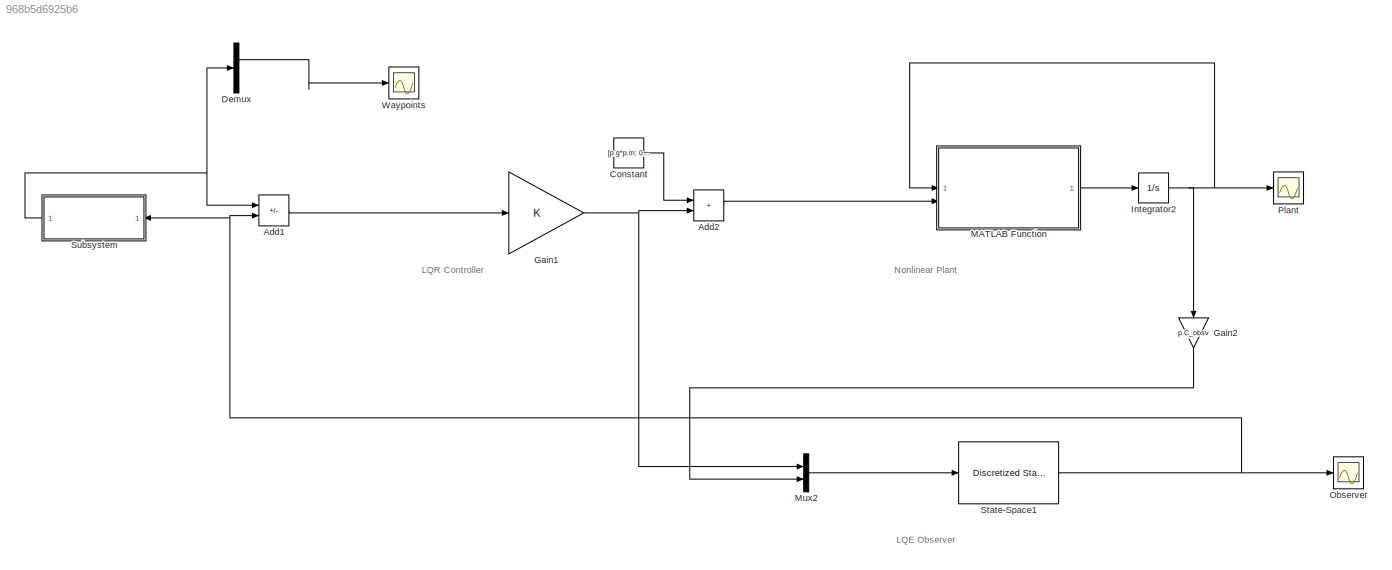
MODEL slx_968b5d6925b6
KIND model
CONFIG AbsTol = auto
CONFIG EnableMultiTasking = off
CONFIG FixedStep = auto
CONFIG MaxStep = auto
CONFIG MinStep = auto
CONFIG RelTol = 1e-3
CONFIG SampleTimeConstraint = Unconstrained
CONFIG SolverName = VariableStepAuto
CONFIG StartTime = 0.0
CONFIG StopTime = 120
BLOCK [Sum] Add1
  IconShape = rectangular
  Inputs = +-
BLOCK [Sum] Add2
  IconShape = rectangular
BLOCK [Constant] Constant
  Value = [p.g*p.m; 0 ; 0; 0]
BLOCK [Demux] Demux
BLOCK [Gain] Gain1
  Gain = K
  Multiplication = Matrix(K*u)
BLOCK [Gain] Gain2
  Gain = p.C_obsv
  Multiplication = Matrix(K*u)
  NameLocation = left
BLOCK [Integrator] Integrator2
  InitialCondition = [0;0;0;0;0;0;0;0;0;0;0;0]
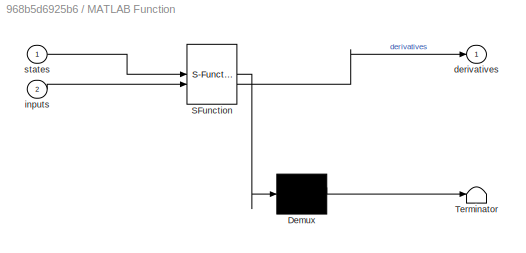
BLOCK [SubSystem] MATLAB Function
  ErrorFcn = Stateflow.Translate.translate
  PermitHierarchicalResolution = ExplicitOnly
  SFBlockType = MATLAB Function
  TreatAsAtomicUnit = on
BLOCK [Demux] MATLAB Function/ Demux 
  Outputs = 1
BLOCK [S-Function] MATLAB Function/ SFunction 
  EnableBusSupport = off
  FunctionName = sf_sfun
  Parameters = p
  PortCounts = [2 2]
  SFcnIsStateOwnerBlock = off
  SFunctionDeploymentMode = off
  Tag = Stateflow S-Function 3
BLOCK [Terminator] MATLAB Function/ Terminator 
BLOCK [Outport] MATLAB Function/derivatives
BLOCK [Inport] MATLAB Function/inputs
  Port = 2
BLOCK [Inport] MATLAB Function/states
BLOCK [Mux] Mux2
  DisplayOption = bar
  Inputs = 2
BLOCK [Scope] Observer
  ActiveDisplayYMaximum = 9.5178431515242661
  ActiveDisplayYMinimum = -10.02123478011695
  DataLoggingVariableName = ScopeData3
  Floating = off
  GraphicalSettings = {"AxesScalingProperties":{"AlignXAxis":"Center","AlignYAxis":"Center","AutoScaleXAxisLimits":false,"AxesScaling":"Manual","AxesScalingNumUpdates":10,"ExpandOnly":true,"ScaleAxesLimitsAtStop":false,"XAxisDataRange":100,"YAxisDataRange":80},"DisplayProperties":{"ColorOrder":["auto","auto","auto","auto","auto","auto","auto","auto","auto","auto","auto","auto","auto","auto","auto","auto","auto","auto",...<+3616ch>
  MultipleDisplayCache = [{"MaxYLimMag":12.619200773589176,"MaxYLimReal":9.5178431515242661,"MinYLimMag":0,"MinYLimReal":-10.02123478011695,"PlotAsMagnitudePhase":false,"ShowGrid":true,"ShowLegend":true,"Title":"%<SignalLabel>","YLabel":""}]
  NumInputPorts = 1
  ScopeFrameLocation = window
  ShowLegend = on
  WasSavedAsWebScope = on
  WindowPosition = [1.000000,49.000000,1536.000000,793.000000,]
BLOCK [Scope] Plant
  ActiveDisplayYMaximum = 13.768800180707615
  ActiveDisplayYMinimum = -13.272021598503848
  DataLoggingVariableName = ScopeData2
  Floating = off
  GraphicalSettings = {"Style":{"BackgroundColor":[0.12941176470588237,0.12941176470588237,0.12941176470588237],"AxesColor":[0.07058823529411765,0.07058823529411765,0.07058823529411765],"LabelsColor":[0.8509803921568627,0.8509803921568627,0.8509803921568627],"PreserveColors":false,"Visible":[true,true,true,true,true,true,true,true,true,true,true,true],"LineStyle":["-","-","-","-","-","-","-","-","-","-","-","-"],"LineW...<+3553ch>
  MultipleDisplayCache = [{"MaxYLimMag":12.224167164982651,"MaxYLimReal":13.768800180707615,"MinYLimMag":0,"MinYLimReal":-13.272021598503848,"PlotAsMagnitudePhase":false,"ShowGrid":true,"ShowLegend":true,"Title":"%<SignalLabel>","YLabel":""}]
  NumInputPorts = 1
  ScopeFrameLocation = window
  ShowLegend = on
  Visible = on
  WasSavedAsWebScope = on
  WindowPosition = [0.000000,36.000000,1536.000000,793.000000,]
BLOCK [Reference] State-Space1  REF=discretizing/Discretized  (lib defined in mdl_5048aa1cd587)
State-Space
  SourceBlock = discretizing/Discretized\nState-Space
  SourceType = DiscretizedStateSpace
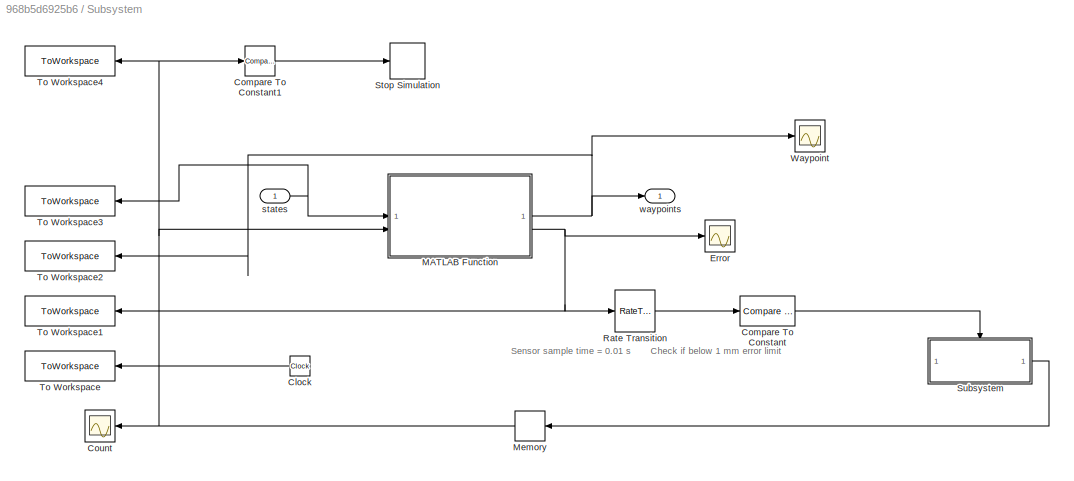
BLOCK [SubSystem] Subsystem
  NameLocation = top
BLOCK [Clock] Subsystem/Clock
  Decimation = 1
  DisplayTime = on
  NameLocation = top
BLOCK [Reference] Subsystem/Compare To Constant  REF=simulink/Logic and Bit
Operations/Compare
To Constant
  SourceBlock = simulink/Logic and Bit\nOperations/Compare\nTo Constant
  SourceType = Compare To Constant
BLOCK [Reference] Subsystem/Compare To Constant1  REF=simulink/Logic and Bit
Operations/Compare
To Constant
  SourceBlock = simulink/Logic and Bit\nOperations/Compare\nTo Constant
  SourceType = Compare To Constant
BLOCK [Scope] Subsystem/Count
  ActiveDisplayYMaximum = 19.823824302397149
  ActiveDisplayYMinimum = -16.093302218045451
  DataLoggingVariableName = ScopeData4
  Floating = off
  GraphicalSettings = {"GraphicalSettings":{"LegacySettings":true,"Style":{"AxesScalingProperties":{"ScaleAxesLimitsAtStop":false},"Style":{"PlotType":"Auto"}}}}
  MultipleDisplayCache = [{"MaxYLimMag":10,"MaxYLimReal":19.823824302397149,"MinYLimMag":0,"MinYLimReal":-16.093302218045451,"PlotAsMagnitudePhase":false,"ShowGrid":true,"ShowLegend":false,"Title":"%<SignalLabel>","YLabel":""}]
  NameLocation = top
  NumInputPorts = 1
  ScopeFrameLocation = window
  WasSavedAsWebScope = on
  WindowPosition = [488.000000,222.000000,560.000000,420.000000,]
BLOCK [Scope] Subsystem/Error
  DataLoggingVariableName = ScopeData1
  Floating = off
  GraphicalSettings = {"GraphicalSettings":{"LegacySettings":true,"Style":{"Style":{"PlotType":"Auto"}}}}
  NumInputPorts = 1
  WasSavedAsWebScope = on
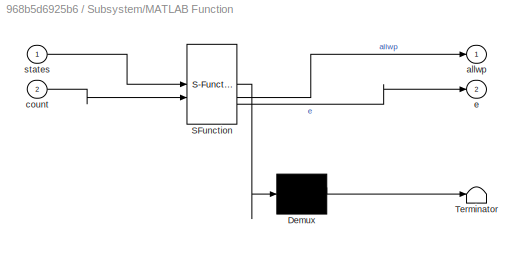
BLOCK [SubSystem] Subsystem/MATLAB Function
  ErrorFcn = Stateflow.Translate.translate
  PermitHierarchicalResolution = ExplicitOnly
  SFBlockType = MATLAB Function
  TreatAsAtomicUnit = on
BLOCK [Demux] Subsystem/MATLAB Function/ Demux 
  Outputs = 1
BLOCK [S-Function] Subsystem/MATLAB Function/ SFunction 
  EnableBusSupport = off
  FunctionName = sf_sfun
  Parameters = p
  PortCounts = [2 3]
  SFcnIsStateOwnerBlock = off
  SFunctionDeploymentMode = off
  Tag = Stateflow S-Function 1
BLOCK [Terminator] Subsystem/MATLAB Function/ Terminator 
BLOCK [Outport] Subsystem/MATLAB Function/allwp
BLOCK [Inport] Subsystem/MATLAB Function/count
  Port = 2
BLOCK [Outport] Subsystem/MATLAB Function/e
  Port = 2
BLOCK [Inport] Subsystem/MATLAB Function/states
BLOCK [Memory] Subsystem/Memory
  InheritSampleTime = on
  NameLocation = top
BLOCK [RateTransition] Subsystem/Rate Transition
  OutPortSampleTime = 0.01
BLOCK [Stop] Subsystem/Stop Simulation
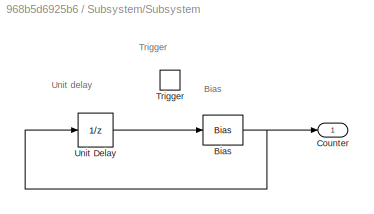
BLOCK [SubSystem] Subsystem/Subsystem
BLOCK [Bias] Subsystem/Subsystem/Bias
  Bias = 1
  SaturateOnIntegerOverflow = off
BLOCK [Outport] Subsystem/Subsystem/Counter
  PortDimensions = [1,1]
BLOCK [TriggerPort] Subsystem/Subsystem/Trigger
  InitialTriggerSignalState = positive
  PortDimensions = 1
  StatesWhenEnabling = held
  VariantControl = (inherit)
BLOCK [UnitDelay] Subsystem/Subsystem/Unit Delay
  HasFrameUpgradeWarning = on
  SampleTime = -1
BLOCK [ToWorkspace] Subsystem/To Workspace
  FixptAsFi = on
  MaxDataPoints = inf
  NameLocation = top
  SampleTime = -1
  VariableName = t
BLOCK [ToWorkspace] Subsystem/To Workspace1
  FixptAsFi = on
  MaxDataPoints = inf
  NameLocation = top
  SampleTime = -1
  VariableName = e
BLOCK [ToWorkspace] Subsystem/To Workspace2
  FixptAsFi = on
  MaxDataPoints = inf
  NameLocation = top
  SampleTime = -1
  VariableName = waypoints
BLOCK [ToWorkspace] Subsystem/To Workspace3
  FixptAsFi = on
  MaxDataPoints = inf
  NameLocation = top
  SampleTime = -1
  VariableName = states
BLOCK [ToWorkspace] Subsystem/To Workspace4
  FixptAsFi = on
  MaxDataPoints = inf
  NameLocation = top
  SampleTime = -1
  VariableName = count
BLOCK [Scope] Subsystem/Waypoint
  Floating = off
  GraphicalSettings = {"GraphicalSettings":{"LegacySettings":true,"Style":{"Style":{"PlotType":"Auto"}}}}
  NumInputPorts = 1
  WasSavedAsWebScope = on
BLOCK [Inport] Subsystem/states
BLOCK [Outport] Subsystem/waypoints
BLOCK [Scope] Waypoints
  DataLoggingVariableName = ScopeData5
  Floating = off
  GraphicalSettings = {"GraphicalSettings":{"LegacySettings":true,"Style":{"Style":{"PlotType":"Auto"}}}}
  NumInputPorts = 1
  WasSavedAsWebScope = on
ANNOTATION (root): LQE Observer
ANNOTATION (root): LQR Controller
ANNOTATION (root): Nonlinear Plant
ANNOTATION Subsystem: Check if below 1 mm error limit
ANNOTATION Subsystem: Sensor sample time = 0.01 s
ANNOTATION Subsystem/Subsystem: Bias
ANNOTATION Subsystem/Subsystem: Trigger
ANNOTATION Subsystem/Subsystem: Unit delay
LINE Add1:1 -> Gain1:1
LINE Add2:1 -> MATLAB Function:2
LINE Constant:1 -> Add2:1
LINE Demux:1 -> Waypoints:1
NET Gain1:1 -> Add2:2, Mux2:1
LINE Gain2:1 -> Mux2:2
NET Integrator2:1 -> Gain2:1, MATLAB Function:1, Plant:1
LINE MATLAB Function:1 -> Integrator2:1
LINE Mux2:1 -> State-Space1:1
NET State-Space1:1 -> Add1:2, Observer:1, Subsystem:1
LINE Subsystem/Clock:1 -> Subsystem/To Workspace:1
LINE Subsystem/Compare To Constant1:1 -> Subsystem/Stop Simulation:1
LINE Subsystem/Compare To Constant:1 -> Subsystem/Subsystem:trigger
NET Subsystem/MATLAB Function:1 -> Subsystem/To Workspace2:1, Subsystem/Waypoint:1, Subsystem/waypoints:1
NET Subsystem/MATLAB Function:2 -> Subsystem/Error:1, Subsystem/Rate Transition:1, Subsystem/To Workspace1:1
NET Subsystem/Memory:1 -> Subsystem/Compare To Constant1:1, Subsystem/Count:1, Subsystem/MATLAB Function:2, Subsystem/To Workspace4:1
LINE Subsystem/Rate Transition:1 -> Subsystem/Compare To Constant:1
NET Subsystem/Subsystem/Bias:1 -> Subsystem/Subsystem/Counter:1, Subsystem/Subsystem/Unit Delay:1
LINE Subsystem/Subsystem/Unit Delay:1 -> Subsystem/Subsystem/Bias:1
LINE Subsystem/Subsystem:1 -> Subsystem/Memory:1
NET Subsystem/states:1 -> Subsystem/MATLAB Function:1, Subsystem/To Workspace3:1
NET Subsystem:1 -> Add1:1, Demux:1
note: NET lines group one-source signal fan-out (src -> all destinations, sorted); 1:1 wires keep LINE
CHART Subsystem/MATLAB Function states=1 transitions=1
  STATE_LABEL 'eML_blk_kernel()'
  STATE_LABEL 'SCRIPT:\nfunction [allwp, e] = waypoints(states, count, p)\n\nallwp = zeros(12, 1); % 12 parameters of interest\nwp = zeros(3, 1); % 3 physical waypoints (x, y, z)\nxi = states(1:3); % initial position values (x, y, z)\n\nif count < 9\n    wp = p.wp(:, (count+1));\n    disp(count)\n    disp(",")\n    disp(wp)\n    disp("-------------")\nelse\n    % wp(1) = 9 * cos(0.2*pi*t);\n    % wp(2) = 9 * sin(0.2*pi*t);\n   ...<+137ch>'
CHART MATLAB Function states=1 transitions=1
  STATE_LABEL 'eML_blk_kernel()'
  STATE_LABEL 'SCRIPT:\nfunction derivatives = fcn(states, inputs, p)\n\n % I is the inertia matrix\n    I = [p.Ixx 0 0;\n         0 p.Iyy 0;\n         0 0 p.Izz];\n\n    xi= states(1:3); % x, y, z\n    xid = states(4:6); %x_prime, y_prime, z_prime\n    eta = states(7:9); % roll, pitch, yaw\n    etad = states(10:12); % roll_prime, pitch_prime, yaw_prime\n\n    % Cosines of each\n    c_roll = cos(eta(1));\n    c_pitch = cos(eta...<+1233ch>'
CHART  states=0 transitions=0
CHART  states=0 transitions=0
